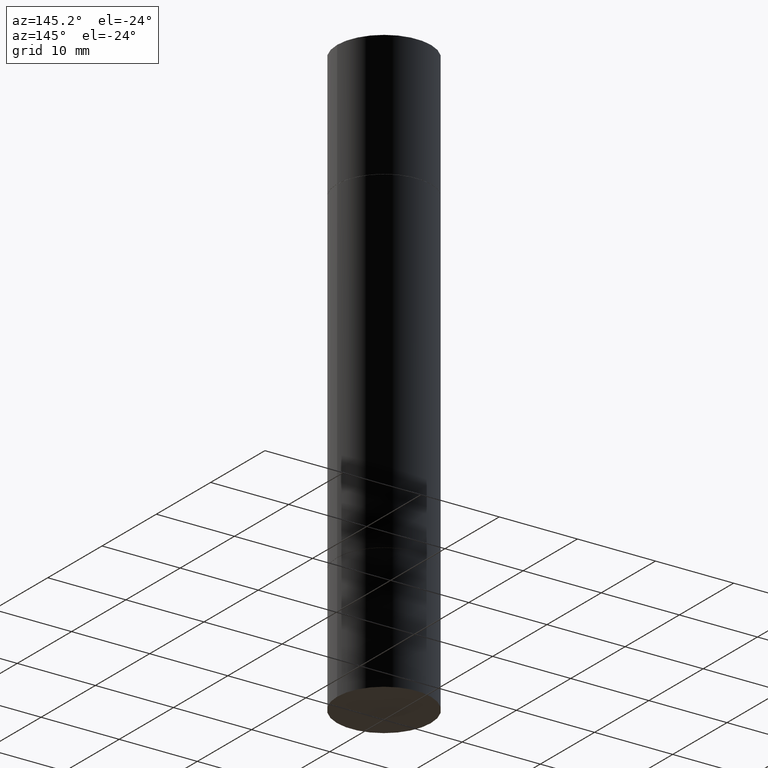
[diagram: clean part render]
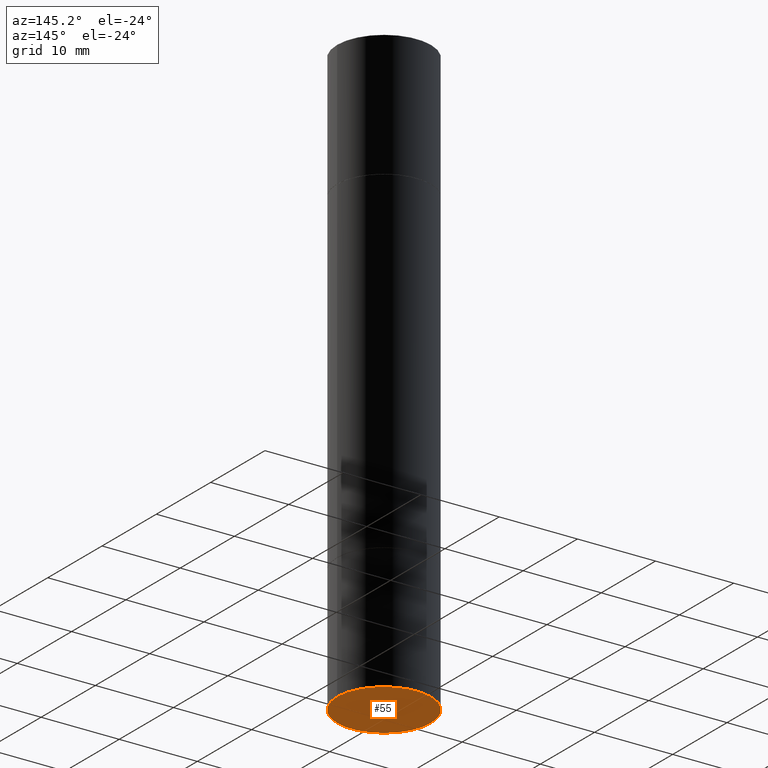
[diagram: same view with one face highlighted and labeled with its STEP entity id]
A machine part, auxiliary view. The second image highlights one B-rep face of the part: STEP entity #55.
In plain terms, the highlighted planar face has unit normal (0, -0, -1).
Its self-contained STEP definition (entity closure, byte-faithful):
#26 = VERTEX_POINT ( 'NONE', #179 ) ;
#34 = EDGE_CURVE ( 'NONE', #26, #337, #43, .T. ) ;
#43 = CIRCLE ( 'NONE', #530, 0.2361999999999999933 ) ;
#55 = ADVANCED_FACE ( 'NONE', ( #442 ), #220, .T. ) ;
#73 = CARTESIAN_POINT ( 'NONE',  ( 7.220980290903470182E-29, -1.030964609733603853E-14, -2.952799999999999869 ) ) ;
#138 = DIRECTION ( 'NONE',  ( 1.000000000000000000, -6.982962677686265133E-15, 0.000000000000000000 ) ) ;
#171 = CARTESIAN_POINT ( 'NONE',  ( 1.649375784469568312E-15, 0.2361999999999896960, -2.952800000000000757 ) ) ;
#179 = CARTESIAN_POINT ( 'NONE',  ( -0.2361999999999999933, -7.531702107802033254E-15, -2.952799999999999869 ) ) ;
#220 = PLANE ( 'NONE',  #393 ) ;
#279 = DIRECTION ( 'NONE',  ( -2.445468806185136597E-29, 3.491481338843145583E-15, 1.000000000000000000 ) ) ;
#283 = CIRCLE ( 'NONE', #329, 0.2361999999999999933 ) ;
#286 = DIRECTION ( 'NONE',  ( 2.438088387897960049E-29, -3.491481338843145188E-15, -1.000000000000000000 ) ) ;
#287 = ORIENTED_EDGE ( 'NONE', *, *, #34, .F. ) ;
#329 = AXIS2_PLACEMENT_3D ( 'NONE', #411, #658, #138 ) ;
#337 = VERTEX_POINT ( 'NONE', #526 ) ;
#393 = AXIS2_PLACEMENT_3D ( 'NONE', #171, #286, #655 ) ;
#411 = CARTESIAN_POINT ( 'NONE',  ( 7.220980290903470182E-29, -1.030964609733603853E-14, -2.952799999999999869 ) ) ;
#442 = FACE_OUTER_BOUND ( 'NONE', #615, .T. ) ;
#526 = CARTESIAN_POINT ( 'NONE',  ( 0.2361999999999999933, -1.195902188180553348E-14, -2.952799999999999869 ) ) ;
#530 = AXIS2_PLACEMENT_3D ( 'NONE', #73, #279, #647 ) ;
#568 = ORIENTED_EDGE ( 'NONE', *, *, #608, .F. ) ;
#608 = EDGE_CURVE ( 'NONE', #337, #26, #283, .T. ) ;
#615 = EDGE_LOOP ( 'NONE', ( #568, #287 ) ) ;
#647 = DIRECTION ( 'NONE',  ( 1.000000000000000000, -6.982962677686265133E-15, 0.000000000000000000 ) ) ;
#655 = DIRECTION ( 'NONE',  ( -1.000000000000000000, 6.982962677686265922E-15, -4.876176775795935793E-29 ) ) ;
#658 = DIRECTION ( 'NONE',  ( -2.445468806185136597E-29, 3.491481338843145583E-15, 1.000000000000000000 ) ) ;